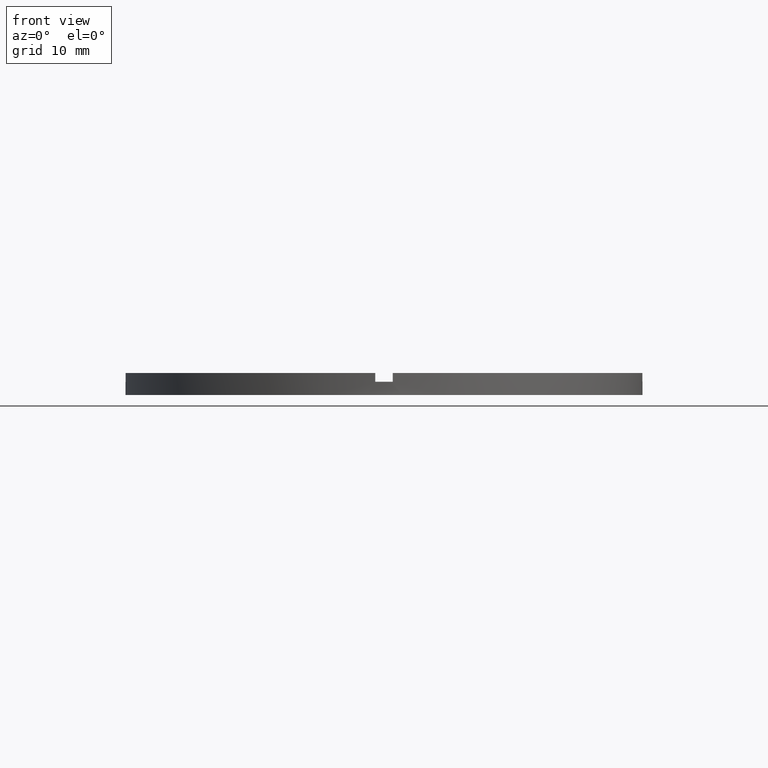
[diagram: clean part render]
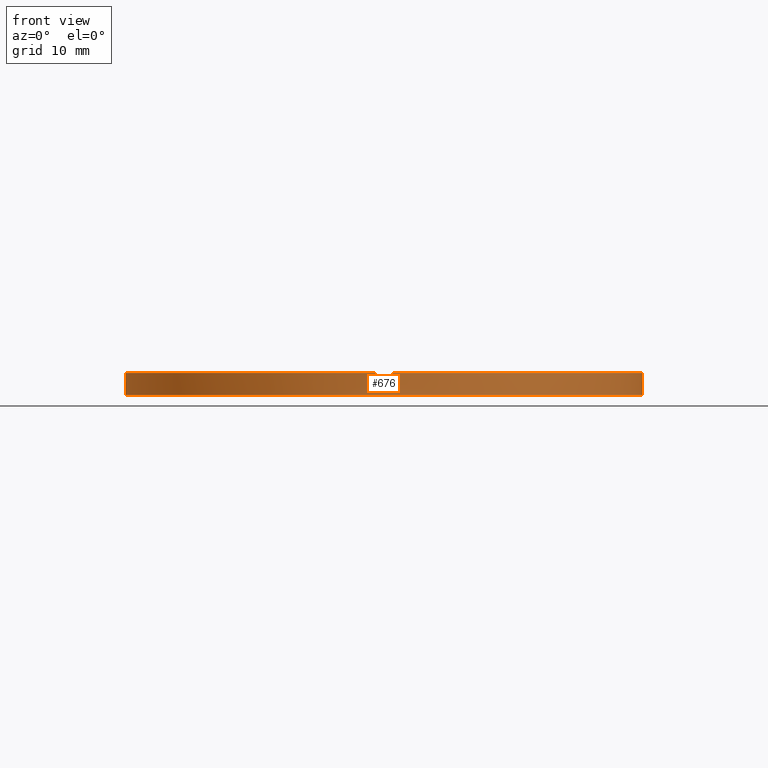
[diagram: same view with one face highlighted and labeled with its STEP entity id]
A machine part, front view. The second image highlights one B-rep face of the part: STEP entity #676.
In plain terms, the highlighted cylindrical surface (partial cylindrical patch) has radius 29.5 mm, axis along (-0, -0, -1).
Its self-contained STEP definition (entity closure, byte-faithful):
#9 = DIRECTION ( 'NONE',  ( 0.000000000000000000, 0.000000000000000000, 1.000000000000000000 ) ) ;
#22 = AXIS2_PLACEMENT_3D ( 'NONE', #138, #308, #87 ) ;
#24 = CIRCLE ( 'NONE', #708, 29.50000000000000355 ) ;
#45 = LINE ( 'NONE', #60, #320 ) ;
#59 = DIRECTION ( 'NONE',  ( -0.000000000000000000, -0.000000000000000000, -1.000000000000000000 ) ) ;
#60 = CARTESIAN_POINT ( 'NONE',  ( -29.50000000000000355, 0.000000000000000000, 2.500000000000000000 ) ) ;
#81 = CARTESIAN_POINT ( 'NONE',  ( 29.50000000000000355, 3.612708057484692393E-15, 1.500000000000000000 ) ) ;
#87 = DIRECTION ( 'NONE',  ( 1.000000000000000000, 0.000000000000000000, 0.000000000000000000 ) ) ;
#90 = CARTESIAN_POINT ( 'NONE',  ( 29.48304597561113383, -1.000000000000158984, 1.500000000000000000 ) ) ;
#95 = CARTESIAN_POINT ( 'NONE',  ( 29.50000000000000355, 3.612708057484692393E-15, 0.000000000000000000 ) ) ;
#96 = EDGE_CURVE ( 'NONE', #704, #491, #565, .T. ) ;
#97 = DIRECTION ( 'NONE',  ( -0.000000000000000000, -0.000000000000000000, -1.000000000000000000 ) ) ;
#98 = AXIS2_PLACEMENT_3D ( 'NONE', #150, #182, #330 ) ;
#99 = EDGE_CURVE ( 'NONE', #421, #491, #307, .T. ) ;
#111 = LINE ( 'NONE', #198, #115 ) ;
#114 = CIRCLE ( 'NONE', #119, 29.50000000000000355 ) ;
#115 = VECTOR ( 'NONE', #188, 1000.000000000000000 ) ;
#119 = AXIS2_PLACEMENT_3D ( 'NONE', #423, #736, #622 ) ;
#120 = EDGE_CURVE ( 'NONE', #223, #715, #24, .T. ) ;
#123 = DIRECTION ( 'NONE',  ( 1.000000000000000000, 0.000000000000000000, 0.000000000000000000 ) ) ;
#124 = CARTESIAN_POINT ( 'NONE',  ( 29.48304597561113383, -1.000000000000158984, 2.500000000000000000 ) ) ;
#128 = CARTESIAN_POINT ( 'NONE',  ( -29.48304597561113738, -1.000000000000025091, 2.500000000000000000 ) ) ;
#134 = DIRECTION ( 'NONE',  ( 0.000000000000000000, 0.000000000000000000, 1.000000000000000000 ) ) ;
#138 = CARTESIAN_POINT ( 'NONE',  ( 0.000000000000000000, 0.000000000000000000, 0.000000000000000000 ) ) ;
#150 = CARTESIAN_POINT ( 'NONE',  ( 0.000000000000000000, 0.000000000000000000, 2.500000000000000000 ) ) ;
#161 = VERTEX_POINT ( 'NONE', #90 ) ;
#167 = EDGE_CURVE ( 'NONE', #223, #754, #45, .T. ) ;
#179 = VERTEX_POINT ( 'NONE', #124 ) ;
#180 = ORIENTED_EDGE ( 'NONE', *, *, #583, .T. ) ;
#182 = DIRECTION ( 'NONE',  ( 0.000000000000000000, 0.000000000000000000, 1.000000000000000000 ) ) ;
#184 = ORIENTED_EDGE ( 'NONE', *, *, #313, .F. ) ;
#188 = DIRECTION ( 'NONE',  ( -0.000000000000000000, -0.000000000000000000, -1.000000000000000000 ) ) ;
#198 = CARTESIAN_POINT ( 'NONE',  ( 0.9999999999998382405, -29.48304597561114448, 2.500000000000000000 ) ) ;
#211 = CARTESIAN_POINT ( 'NONE',  ( 29.50000000000000355, 3.612708057484692393E-15, 2.500000000000000000 ) ) ;
#222 = ORIENTED_EDGE ( 'NONE', *, *, #666, .T. ) ;
#223 = VERTEX_POINT ( 'NONE', #628 ) ;
#227 = DIRECTION ( 'NONE',  ( -1.000000000000000000, 0.000000000000000000, 0.000000000000000000 ) ) ;
#230 = CARTESIAN_POINT ( 'NONE',  ( 0.9999999999998382405, -29.48304597561114448, 1.500000000000000000 ) ) ;
#234 = ORIENTED_EDGE ( 'NONE', *, *, #96, .T. ) ;
#243 = CARTESIAN_POINT ( 'NONE',  ( -1.000000000000161871, -29.48304597561113383, 2.500000000000000000 ) ) ;
#255 = VECTOR ( 'NONE', #59, 1000.000000000000000 ) ;
#256 = ORIENTED_EDGE ( 'NONE', *, *, #338, .F. ) ;
#264 = CARTESIAN_POINT ( 'NONE',  ( 0.000000000000000000, 0.000000000000000000, 1.500000000000000000 ) ) ;
#289 = VECTOR ( 'NONE', #9, 1000.000000000000000 ) ;
#295 = EDGE_CURVE ( 'NONE', #701, #664, #397, .T. ) ;
#307 = CIRCLE ( 'NONE', #98, 29.50000000000000355 ) ;
#308 = DIRECTION ( 'NONE',  ( 0.000000000000000000, 0.000000000000000000, 1.000000000000000000 ) ) ;
#313 = EDGE_CURVE ( 'NONE', #764, #179, #114, .T. ) ;
#320 = VECTOR ( 'NONE', #97, 1000.000000000000000 ) ;
#330 = DIRECTION ( 'NONE',  ( 1.000000000000000000, 0.000000000000000000, 0.000000000000000000 ) ) ;
#334 = DIRECTION ( 'NONE',  ( 0.000000000000000000, 0.000000000000000000, 1.000000000000000000 ) ) ;
#338 = EDGE_CURVE ( 'NONE', #161, #701, #661, .T. ) ;
#339 = EDGE_CURVE ( 'NONE', #764, #482, #111, .T. ) ;
#345 = DIRECTION ( 'NONE',  ( -0.000000000000000000, -0.000000000000000000, -1.000000000000000000 ) ) ;
#352 = DIRECTION ( 'NONE',  ( -0.000000000000000000, -0.000000000000000000, -1.000000000000000000 ) ) ;
#356 = EDGE_CURVE ( 'NONE', #704, #482, #649, .T. ) ;
#383 = CARTESIAN_POINT ( 'NONE',  ( 0.000000000000000000, 0.000000000000000000, 1.500000000000000000 ) ) ;
#397 = LINE ( 'NONE', #211, #653 ) ;
#401 = CARTESIAN_POINT ( 'NONE',  ( -29.50000000000000355, 0.000000000000000000, 0.000000000000000000 ) ) ;
#405 = DIRECTION ( 'NONE',  ( 1.000000000000000000, 0.000000000000000000, 0.000000000000000000 ) ) ;
#421 = VERTEX_POINT ( 'NONE', #611 ) ;
#423 = CARTESIAN_POINT ( 'NONE',  ( 0.000000000000000000, 0.000000000000000000, 2.500000000000000000 ) ) ;
#424 = EDGE_LOOP ( 'NONE', ( #705, #256, #222, #184, #739, #490, #234, #759, #450, #677, #774, #180 ) ) ;
#444 = DIRECTION ( 'NONE',  ( -0.000000000000000000, 0.000000000000000000, 1.000000000000000000 ) ) ;
#450 = ORIENTED_EDGE ( 'NONE', *, *, #658, .T. ) ;
#458 = AXIS2_PLACEMENT_3D ( 'NONE', #383, #334, #123 ) ;
#460 = CARTESIAN_POINT ( 'NONE',  ( 0.9999999999998382405, -29.48304597561114448, 2.500000000000000000 ) ) ;
#482 = VERTEX_POINT ( 'NONE', #230 ) ;
#490 = ORIENTED_EDGE ( 'NONE', *, *, #356, .F. ) ;
#491 = VERTEX_POINT ( 'NONE', #643 ) ;
#503 = CIRCLE ( 'NONE', #22, 29.50000000000000355 ) ;
#522 = CYLINDRICAL_SURFACE ( 'NONE', #782, 29.50000000000000355 ) ;
#523 = FACE_OUTER_BOUND ( 'NONE', #424, .T. ) ;
#524 = DIRECTION ( 'NONE',  ( 1.000000000000000000, 0.000000000000000000, 0.000000000000000000 ) ) ;
#534 = CARTESIAN_POINT ( 'NONE',  ( -1.000000000000161871, -29.48304597561113383, 1.500000000000000000 ) ) ;
#535 = LINE ( 'NONE', #541, #768 ) ;
#541 = CARTESIAN_POINT ( 'NONE',  ( 29.48304597561113383, -1.000000000000158984, 2.500000000000000000 ) ) ;
#543 = AXIS2_PLACEMENT_3D ( 'NONE', #757, #444, #524 ) ;
#565 = LINE ( 'NONE', #243, #289 ) ;
#583 = EDGE_CURVE ( 'NONE', #754, #664, #503, .T. ) ;
#611 = CARTESIAN_POINT ( 'NONE',  ( -29.48304597561113738, -1.000000000000025091, 2.500000000000000000 ) ) ;
#622 = DIRECTION ( 'NONE',  ( 1.000000000000000000, 0.000000000000000000, 0.000000000000000000 ) ) ;
#628 = CARTESIAN_POINT ( 'NONE',  ( -29.50000000000000355, 0.000000000000000000, 1.500000000000000000 ) ) ;
#643 = CARTESIAN_POINT ( 'NONE',  ( -1.000000000000161871, -29.48304597561113383, 2.500000000000000000 ) ) ;
#649 = CIRCLE ( 'NONE', #543, 29.50000000000000355 ) ;
#653 = VECTOR ( 'NONE', #345, 1000.000000000000000 ) ;
#658 = EDGE_CURVE ( 'NONE', #421, #715, #783, .T. ) ;
#661 = CIRCLE ( 'NONE', #458, 29.50000000000000355 ) ;
#664 = VERTEX_POINT ( 'NONE', #95 ) ;
#666 = EDGE_CURVE ( 'NONE', #161, #179, #535, .T. ) ;
#676 = ADVANCED_FACE ( 'NONE', ( #523 ), #522, .T. ) ;
#677 = ORIENTED_EDGE ( 'NONE', *, *, #120, .F. ) ;
#679 = CARTESIAN_POINT ( 'NONE',  ( -29.48304597561113738, -1.000000000000025091, 1.500000000000000000 ) ) ;
#701 = VERTEX_POINT ( 'NONE', #81 ) ;
#704 = VERTEX_POINT ( 'NONE', #534 ) ;
#705 = ORIENTED_EDGE ( 'NONE', *, *, #295, .F. ) ;
#708 = AXIS2_PLACEMENT_3D ( 'NONE', #264, #724, #405 ) ;
#715 = VERTEX_POINT ( 'NONE', #679 ) ;
#724 = DIRECTION ( 'NONE',  ( 0.000000000000000000, 0.000000000000000000, 1.000000000000000000 ) ) ;
#736 = DIRECTION ( 'NONE',  ( 0.000000000000000000, 0.000000000000000000, 1.000000000000000000 ) ) ;
#739 = ORIENTED_EDGE ( 'NONE', *, *, #339, .T. ) ;
#754 = VERTEX_POINT ( 'NONE', #401 ) ;
#757 = CARTESIAN_POINT ( 'NONE',  ( 0.000000000000000000, 0.000000000000000000, 1.500000000000000000 ) ) ;
#759 = ORIENTED_EDGE ( 'NONE', *, *, #99, .F. ) ;
#764 = VERTEX_POINT ( 'NONE', #460 ) ;
#768 = VECTOR ( 'NONE', #134, 1000.000000000000000 ) ;
#772 = CARTESIAN_POINT ( 'NONE',  ( 0.000000000000000000, 0.000000000000000000, 2.500000000000000000 ) ) ;
#774 = ORIENTED_EDGE ( 'NONE', *, *, #167, .T. ) ;
#782 = AXIS2_PLACEMENT_3D ( 'NONE', #772, #352, #227 ) ;
#783 = LINE ( 'NONE', #128, #255 ) ;